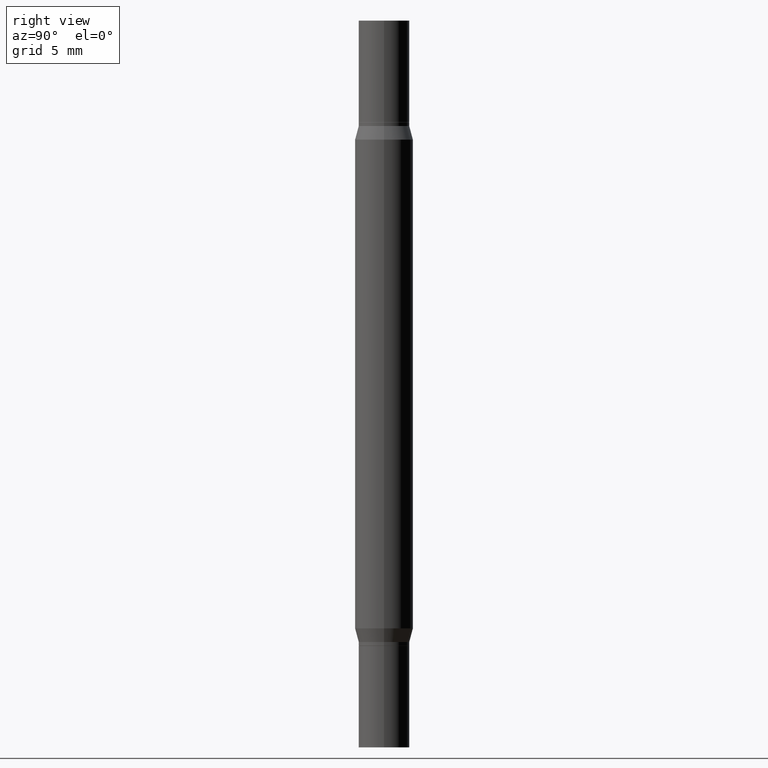
[diagram: clean part render]
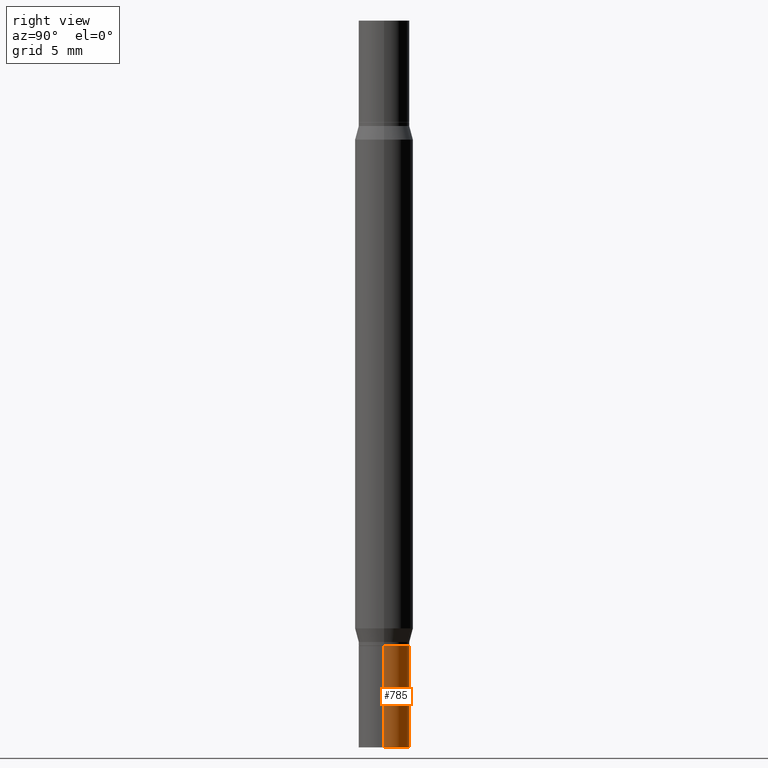
[diagram: same view with one face highlighted and labeled with its STEP entity id]
A machine part, right view. The second image highlights one B-rep face of the part: STEP entity #785.
In plain terms, the highlighted cylindrical surface (edge-blend (fillet) strip) has radius 1.7501 mm, axis along (-0, 0, 1).
Its self-contained STEP definition (entity closure, byte-faithful):
#7 = EDGE_CURVE ( 'NONE', #586, #376, #369, .T. ) ;
#11 = FACE_OUTER_BOUND ( 'NONE', #391, .T. ) ;
#32 = CARTESIAN_POINT ( 'NONE',  ( 4.139934141990817236E-29, -5.910728758527560286E-15, -1.692899999999999849 ) ) ;
#33 = ORIENTED_EDGE ( 'NONE', *, *, #967, .T. ) ;
#44 = DIRECTION ( 'NONE',  ( -2.445468806185136877E-29, 3.491481338843145188E-15, 1.000000000000000000 ) ) ;
#81 = DIRECTION ( 'NONE',  ( -2.445468806185136597E-29, 3.491481338843145583E-15, 1.000000000000000000 ) ) ;
#121 = DIRECTION ( 'NONE',  ( 1.000000000000000000, -6.982962677686258822E-15, 0.000000000000000000 ) ) ;
#148 = DIRECTION ( 'NONE',  ( 1.000000000000000000, -6.982962677686265922E-15, 4.876176775795935232E-29 ) ) ;
#161 = CARTESIAN_POINT ( 'NONE',  ( 4.813905344975441835E-29, -6.872981015512731707E-15, -1.968500000000000139 ) ) ;
#172 = CARTESIAN_POINT ( 'NONE',  ( -0.06890000000000007230, 4.895639449387095418E-16, -3.389146277185633520E-30 ) ) ;
#195 = VERTEX_POINT ( 'NONE', #358 ) ;
#249 = CARTESIAN_POINT ( 'NONE',  ( 0.06890000000000007230, -7.354107144005315446E-15, -1.968500000000000139 ) ) ;
#268 = EDGE_CURVE ( 'NONE', #952, #195, #667, .T. ) ;
#283 = VECTOR ( 'NONE', #484, 39.37007874015748143 ) ;
#286 = CARTESIAN_POINT ( 'NONE',  ( 0.06890000000000007230, -6.391854887020144024E-15, -1.692899999999999849 ) ) ;
#313 = VECTOR ( 'NONE', #44, 39.37007874015748143 ) ;
#358 = CARTESIAN_POINT ( 'NONE',  ( -0.06890000000000007230, -5.902290942081436849E-15, -1.968500000000000139 ) ) ;
#369 = CIRCLE ( 'NONE', #518, 0.06890000000000007230 ) ;
#376 = VERTEX_POINT ( 'NONE', #418 ) ;
#391 = EDGE_LOOP ( 'NONE', ( #873, #33, #512, #451 ) ) ;
#418 = CARTESIAN_POINT ( 'NONE',  ( -0.06890000000000007230, -5.902290942081436849E-15, -1.692899999999999849 ) ) ;
#436 = LINE ( 'NONE', #736, #283 ) ;
#437 = CARTESIAN_POINT ( 'NONE',  ( 0.000000000000000000, 0.000000000000000000, 0.000000000000000000 ) ) ;
#440 = CYLINDRICAL_SURFACE ( 'NONE', #533, 0.06890000000000007230 ) ;
#451 = ORIENTED_EDGE ( 'NONE', *, *, #670, .F. ) ;
#484 = DIRECTION ( 'NONE',  ( -2.445468806185136877E-29, 3.491481338843145188E-15, 1.000000000000000000 ) ) ;
#489 = AXIS2_PLACEMENT_3D ( 'NONE', #161, #81, #520 ) ;
#512 = ORIENTED_EDGE ( 'NONE', *, *, #7, .F. ) ;
#518 = AXIS2_PLACEMENT_3D ( 'NONE', #32, #630, #121 ) ;
#520 = DIRECTION ( 'NONE',  ( 1.000000000000000000, -6.982962677686258822E-15, 0.000000000000000000 ) ) ;
#533 = AXIS2_PLACEMENT_3D ( 'NONE', #437, #737, #148 ) ;
#586 = VERTEX_POINT ( 'NONE', #286 ) ;
#630 = DIRECTION ( 'NONE',  ( -2.445468806185136597E-29, 3.491481338843145583E-15, 1.000000000000000000 ) ) ;
#667 = CIRCLE ( 'NONE', #489, 0.06890000000000007230 ) ;
#670 = EDGE_CURVE ( 'NONE', #952, #586, #436, .T. ) ;
#700 = LINE ( 'NONE', #172, #313 ) ;
#736 = CARTESIAN_POINT ( 'NONE',  ( 0.06890000000000007230, -4.811261284925842315E-16, 3.359685798523402771E-30 ) ) ;
#737 = DIRECTION ( 'NONE',  ( -2.445468806185136597E-29, 3.491481338843145583E-15, 1.000000000000000000 ) ) ;
#785 = ADVANCED_FACE ( 'NONE', ( #11 ), #440, .T. ) ;
#873 = ORIENTED_EDGE ( 'NONE', *, *, #268, .T. ) ;
#952 = VERTEX_POINT ( 'NONE', #249 ) ;
#967 = EDGE_CURVE ( 'NONE', #195, #376, #700, .T. ) ;